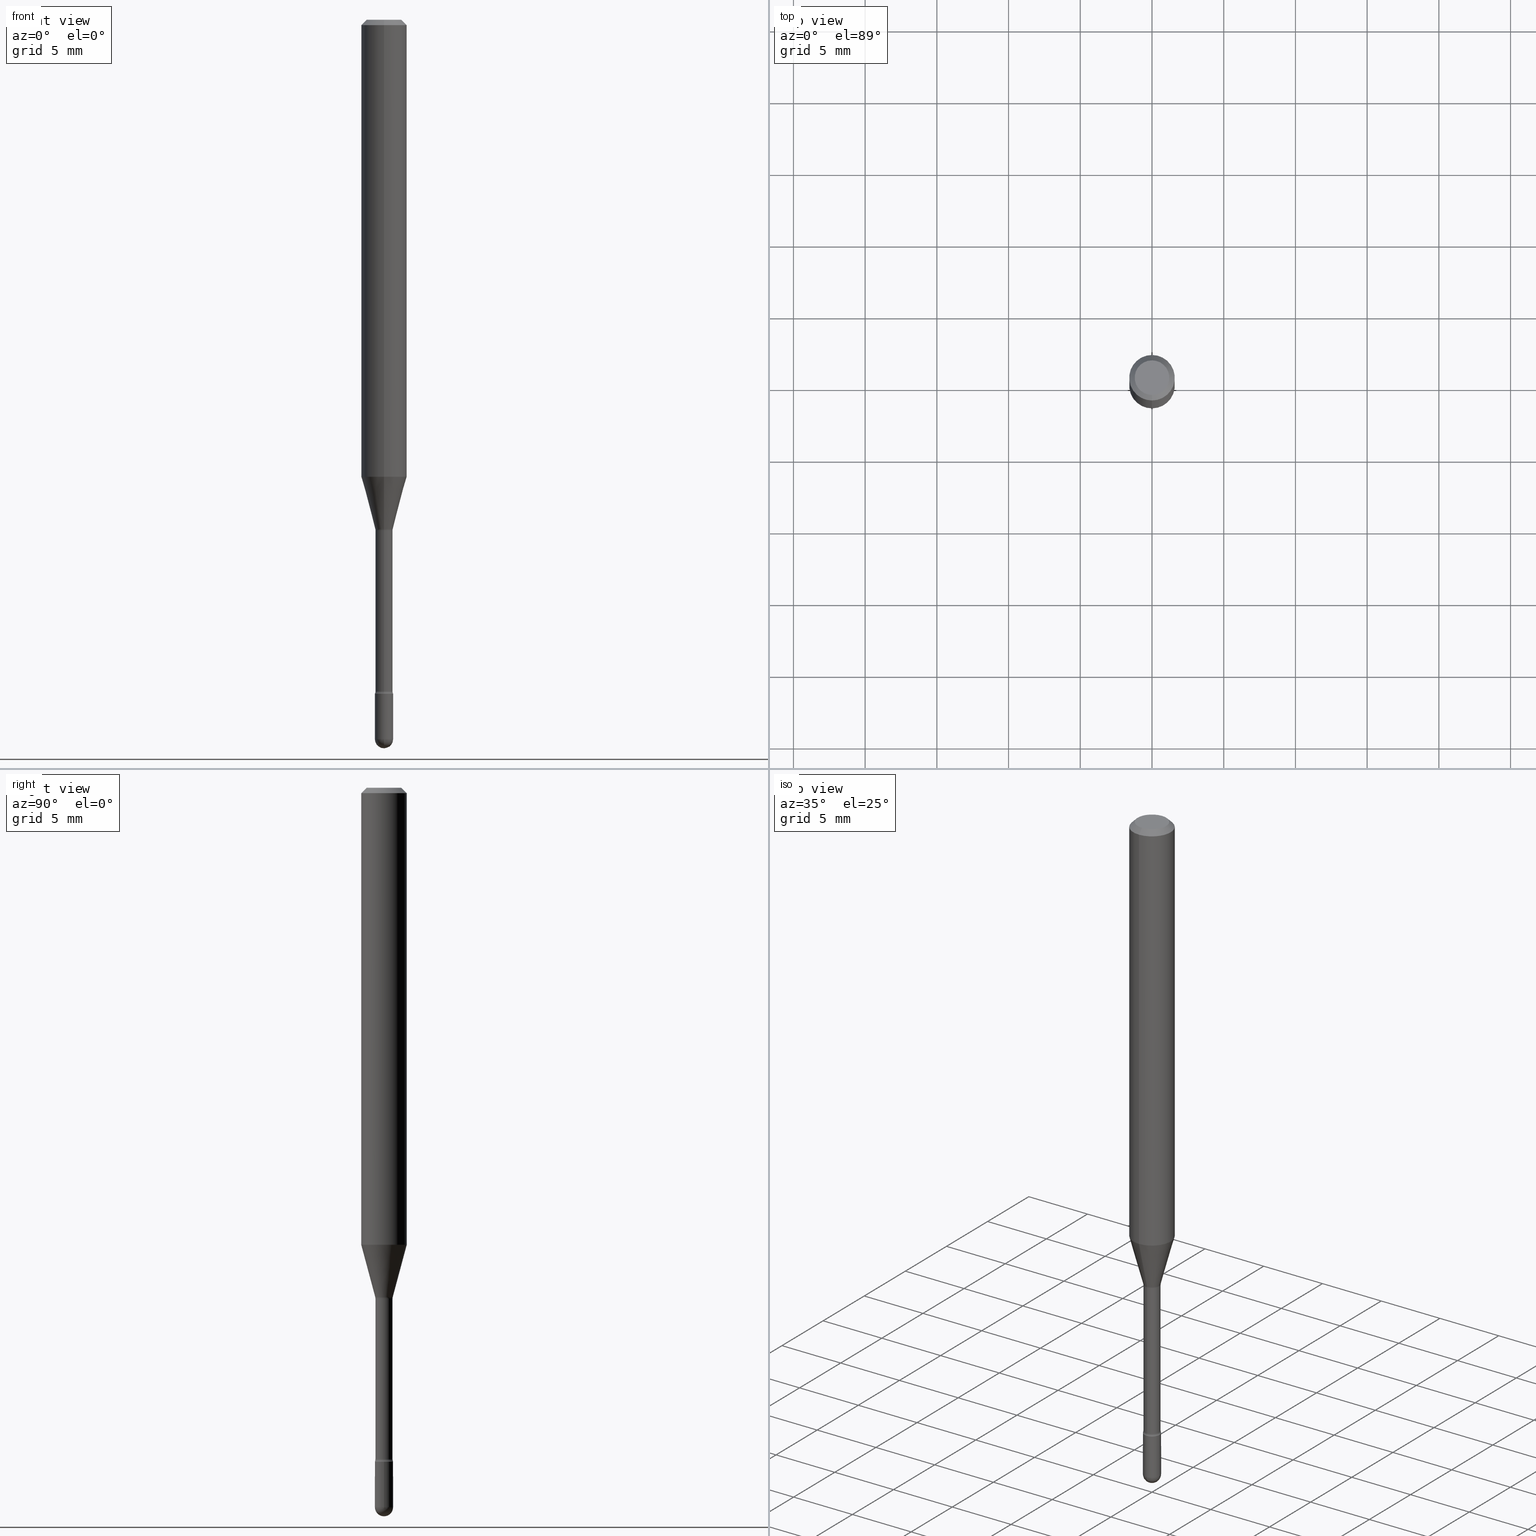
[diagram: canonical four-view strip — front | top / right | iso, engineering-drawing reading convention]
A machine part, canonical four-view strip (front | top / right | iso — engineering-drawing reading convention). The complete STEP part file that produces these views, byte-faithful:
ISO-10303-21;
HEADER;
FILE_DESCRIPTION (( 'STEP AP203' ),
    '1' );
FILE_NAME ('03734.STEP',
    '2024-04-09T20:17:31',
    ( '' ),
    ( '' ),
    'SwSTEP 2.0',
    'SolidWorks 2023',
    '' );
FILE_SCHEMA (( 'CONFIG_CONTROL_DESIGN' ));
ENDSEC;

DATA;
#1 = CARTESIAN_POINT ( 'NONE',  ( 4.508127964348889848E-29, -6.436411955380906656E-15, -1.843461651584689109 ) ) ;
#2 = CARTESIAN_POINT ( 'NONE',  ( 1.745740669422019040E-16, 0.02499999999999354475, -1.849999999999999867 ) ) ;
#3 = ADVANCED_FACE ( 'NONE', ( #37 ), #222, .T. ) ;
#4 = CARTESIAN_POINT ( 'NONE',  ( 0.000000000000000000, 0.000000000000000000, 0.000000000000000000 ) ) ;
#5 = CARTESIAN_POINT ( 'NONE',  ( 4.440892098500934804E-16, 0.06249999999999995143, -0.01500000000000030129 ) ) ;
#6 = ORIENTED_EDGE ( 'NONE', *, *, #508, .F. ) ;
#7 = CARTESIAN_POINT ( 'NONE',  ( 3.840629472727447874E-16, 0.04749999999999999362, -2.485923956665947867E-16 ) ) ;
#8 = DATE_AND_TIME ( #428, #138 ) ;
#9 = CIRCLE ( 'NONE', #531, 0.02350000000000007291 ) ;
#10 = CARTESIAN_POINT ( 'NONE',  ( -1.640996229256275231E-16, -0.02350000000000003475, 5.601221592985818843E-16 ) ) ;
#11 = EDGE_LOOP ( 'NONE', ( #243, #24, #474, #456 ) ) ;
#12 = CARTESIAN_POINT ( 'NONE',  ( -0.02500000000000000486, 1.776356839400250810E-16, -1.229733772563726656E-30 ) ) ;
#13 = ORIENTED_EDGE ( 'NONE', *, *, #75, .T. ) ;
#14 = EDGE_CURVE ( 'NONE', #51, #554, #357, .T. ) ;
#15 = DIRECTION ( 'NONE',  ( 1.000000000000000000, -7.105427357601001070E-15, 4.926314960809432422E-29 ) ) ;
#16 = DIRECTION ( 'NONE',  ( -6.982962677686265922E-15, -1.000000000000000000, 3.491436613078110807E-15 ) ) ;
#17 = DIMENSIONAL_EXPONENTS ( 1.000000000000000000, 0.000000000000000000, 0.000000000000000000, 0.000000000000000000, 0.000000000000000000, 0.000000000000000000, 0.000000000000000000 ) ;
#18 = AXIS2_PLACEMENT_3D ( 'NONE', #437, #142, #491 ) ;
#19 = CARTESIAN_POINT ( 'NONE',  ( -1.169113584055446105E-44, 1.669184350826100908E-30, 4.780733988912460139E-16 ) ) ;
#20 = AXIS2_PLACEMENT_3D ( 'NONE', #65, #163, #175 ) ;
#21 = ADVANCED_FACE ( 'NONE', ( #85 ), #267, .T. ) ;
#22 = DIRECTION ( 'NONE',  ( -2.445500038019932902E-29, 3.491436613078111990E-15, 1.000000000000000000 ) ) ;
#23 = ADVANCED_FACE ( 'NONE', ( #389 ), #566, .T. ) ;
#24 = ORIENTED_EDGE ( 'NONE', *, *, #556, .T. ) ;
#25 = DIRECTION ( 'NONE',  ( -2.445500038019932902E-29, 3.491436613078111990E-15, 1.000000000000000000 ) ) ;
#26 = EDGE_CURVE ( 'NONE', #415, #154, #50, .T. ) ;
#27 =( LENGTH_UNIT ( ) NAMED_UNIT ( * ) SI_UNIT ( $, .METRE. ) );
#28 = AXIS2_PLACEMENT_3D ( 'NONE', #141, #494, #116 ) ;
#29 = CIRCLE ( 'NONE', #90, 0.06250000000000000000 ) ;
#30 = DIRECTION ( 'NONE',  ( -2.445500038019932902E-29, 3.491436613078111990E-15, 1.000000000000000000 ) ) ;
#31 = CC_DESIGN_PERSON_AND_ORGANIZATION_ASSIGNMENT ( #274, #305, ( #227 ) ) ;
#32 = FACE_OUTER_BOUND ( 'NONE', #98, .T. ) ;
#33 = CIRCLE ( 'NONE', #18, 0.01500000000000002720 ) ;
#34 = EDGE_CURVE ( 'NONE', #403, #516, #155, .T. ) ;
#35 = CIRCLE ( 'NONE', #322, 0.02500000000000000139 ) ;
#36 = DIRECTION ( 'NONE',  ( 1.000000000000000000, 0.000000000000000000, 0.000000000000000000 ) ) ;
#37 = FACE_OUTER_BOUND ( 'NONE', #547, .T. ) ;
#38 = ADVANCED_BREP_SHAPE_REPRESENTATION ( '03734', ( #390, #213, #372 ), #511 ) ;
#39 = EDGE_CURVE ( 'NONE', #83, #204, #49, .T. ) ;
#40 = AXIS2_PLACEMENT_3D ( 'NONE', #562, #89, #528 ) ;
#41 = AXIS2_PLACEMENT_3D ( 'NONE', #181, #185, #400 ) ;
#42 = LINE ( 'NONE', #10, #124 ) ;
#43 = ADVANCED_FACE ( 'NONE', ( #402 ), #150, .F. ) ;
#44 = APPROVAL_STATUS ( 'not_yet_approved' ) ;
#45 = DIRECTION ( 'NONE',  ( 1.000000000000000000, -6.982962677686265922E-15, 4.883557194083112340E-29 ) ) ;
#46 = PERSON_AND_ORGANIZATION ( #351, #467 ) ;
#47 = CARTESIAN_POINT ( 'NONE',  ( 3.419035266276159632E-29, -4.881351349210060803E-15, -1.398092501787273179 ) ) ;
#48 = ORIENTED_EDGE ( 'NONE', *, *, #470, .T. ) ;
#49 = LINE ( 'NONE', #239, #465 ) ;
#50 = CIRCLE ( 'NONE', #167, 0.02500000000000000139 ) ;
#51 = VERTEX_POINT ( 'NONE', #7 ) ;
#52 = CARTESIAN_POINT ( 'NONE',  ( -4.364351673553912750E-16, -0.06250000000000005551, -0.01499999999999986587 ) ) ;
#53 = EDGE_LOOP ( 'NONE', ( #502, #501, #211, #536 ) ) ;
#54 = DIRECTION ( 'NONE',  ( 1.000000000000000000, -6.982962677686254878E-15, 0.000000000000000000 ) ) ;
#55 = CARTESIAN_POINT ( 'NONE',  ( 4.364351673553919652E-16, 0.06249999999999995143, -0.01500000000000030129 ) ) ;
#56 = EDGE_LOOP ( 'NONE', ( #281, #377, #214, #233 ) ) ;
#57 = ORIENTED_EDGE ( 'NONE', *, *, #153, .F. ) ;
#58 = DIRECTION ( 'NONE',  ( -6.982962677686263555E-15, -1.000000000000000000, 0.000000000000000000 ) ) ;
#59 = VECTOR ( 'NONE', #559, 39.37007874015748143 ) ;
#60 = DIRECTION ( 'NONE',  ( -1.000000000000000000, 6.982962677686265922E-15, -4.883557194083112901E-29 ) ) ;
#61 = TOROIDAL_SURFACE ( 'NONE', #168, 0.03850000000000000644, 0.01500000000000002373 ) ;
#62 = EDGE_CURVE ( 'NONE', #558, #154, #84, .T. ) ;
#63 = FACE_OUTER_BOUND ( 'NONE', #394, .T. ) ;
#64 = EDGE_CURVE ( 'NONE', #83, #276, #517, .T. ) ;
#65 = CARTESIAN_POINT ( 'NONE',  ( 4.829800892215644891E-29, -6.895675644215213620E-15, -1.975000000000000089 ) ) ;
#66 = ORIENTED_EDGE ( 'NONE', *, *, #255, .F. ) ;
#67 = APPLICATION_CONTEXT ( 'configuration controlled 3d designs of mechanical parts and assemblies' ) ;
#68 = DIRECTION ( 'NONE',  ( -6.982962677686265922E-15, -1.000000000000000000, 3.491436613078112385E-15 ) ) ;
#69 = CIRCLE ( 'NONE', #201, 0.01499999999999998557 ) ;
#70 = CIRCLE ( 'NONE', #338, 0.02401111260566398883 ) ;
#71 = DIRECTION ( 'NONE',  ( 6.982962677686265922E-15, 1.000000000000000000, -3.483106191921935554E-15 ) ) ;
#72 = DIRECTION ( 'NONE',  ( -2.445468806185136597E-29, 3.491481338843145583E-15, 1.000000000000000000 ) ) ;
#73 = ORIENTED_EDGE ( 'NONE', *, *, #255, .T. ) ;
#74 = CIRCLE ( 'NONE', #282, 0.02500000000000000486 ) ;
#75 = EDGE_CURVE ( 'NONE', #248, #405, #33, .T. ) ;
#76 = AXIS2_PLACEMENT_3D ( 'NONE', #289, #408, #457 ) ;
#77 = CYLINDRICAL_SURFACE ( 'NONE', #525, 0.02500000000000000486 ) ;
#78 = APPROVAL_STATUS ( 'not_yet_approved' ) ;
#79 = ORIENTED_EDGE ( 'NONE', *, *, #422, .F. ) ;
#80 = DIRECTION ( 'NONE',  ( 1.839019923739600710E-15, 0.2588190451025250138, 0.9659258262890670910 ) ) ;
#81 = ORIENTED_EDGE ( 'NONE', *, *, #216, .T. ) ;
#82 = DATE_AND_TIME ( #270, #342 ) ;
#83 = VERTEX_POINT ( 'NONE', #312 ) ;
#84 = LINE ( 'NONE', #12, #59 ) ;
#85 = FACE_OUTER_BOUND ( 'NONE', #11, .T. ) ;
#86 = EDGE_CURVE ( 'NONE', #108, #405, #269, .T. ) ;
#87 = AXIS2_PLACEMENT_3D ( 'NONE', #449, #157, #307 ) ;
#88 = LENGTH_MEASURE_WITH_UNIT ( LENGTH_MEASURE( 0.02539999999999999897 ), #27 );
#89 = DIRECTION ( 'NONE',  ( -2.438088387897960049E-29, 3.491481338843145188E-15, 1.000000000000000000 ) ) ;
#90 = AXIS2_PLACEMENT_3D ( 'NONE', #505, #22, #327 ) ;
#91 = FACE_OUTER_BOUND ( 'NONE', #56, .T. ) ;
#92 = ADVANCED_FACE ( 'NONE', ( #302 ), #397, .T. ) ;
#93 = APPROVAL_DATE_TIME ( #482, #104 ) ;
#94 = DIRECTION ( 'NONE',  ( -2.445500038019932902E-29, 3.491436613078111990E-15, 1.000000000000000000 ) ) ;
#95 = EDGE_CURVE ( 'NONE', #248, #276, #523, .T. ) ;
#96 = ORIENTED_EDGE ( 'NONE', *, *, #417, .F. ) ;
#97 = CYLINDRICAL_SURFACE ( 'NONE', #424, 0.06250000000000000000 ) ;
#98 = EDGE_LOOP ( 'NONE', ( #452, #549, #349, #272 ) ) ;
#99 = TOROIDAL_SURFACE ( 'NONE', #443, 0.03850000000000000644, 0.01500000000000002373 ) ;
#100 = VECTOR ( 'NONE', #286, 39.37007874015748143 ) ;
#101 = DIRECTION ( 'NONE',  ( -2.445500038019932902E-29, 3.491436613078111990E-15, 1.000000000000000000 ) ) ;
#102 = CYLINDRICAL_SURFACE ( 'NONE', #563, 0.02350000000000003475 ) ;
#103 = SHAPE_DEFINITION_REPRESENTATION ( #106, #38 ) ;
#104 = APPROVAL ( #126, 'UNSPECIFIED' ) ;
#105 = SPHERICAL_SURFACE ( 'NONE', #20, 0.02499999999999993894 ) ;
#106 = PRODUCT_DEFINITION_SHAPE ( 'NONE', 'NONE',  #453 ) ;
#107 = DIRECTION ( 'NONE',  ( 1.000000000000000000, -6.982962677686253300E-15, 0.000000000000000000 ) ) ;
#108 = VERTEX_POINT ( 'NONE', #435 ) ;
#109 = CONICAL_SURFACE ( 'NONE', #332, 0.02401111260566398883, 0.2617993877991502960 ) ;
#110 = AXIS2_PLACEMENT_3D ( 'NONE', #235, #487, #442 ) ;
#111 = DIRECTION ( 'NONE',  ( -2.445500038019932902E-29, 3.491436613078111990E-15, 1.000000000000000000 ) ) ;
#112 = CIRCLE ( 'NONE', #76, 0.06250000000000000000 ) ;
#113 = CARTESIAN_POINT ( 'NONE',  ( 3.668250057029919339E-31, -5.237154919617196828E-17, -0.01500000000000008271 ) ) ;
#114 = ADVANCED_FACE ( 'NONE', ( #306 ), #99, .F. ) ;
#115 = DIRECTION ( 'NONE',  ( -2.445468806185136597E-29, 3.491481338843145583E-15, 1.000000000000000000 ) ) ;
#116 = DIRECTION ( 'NONE',  ( -6.982962677686265133E-15, -1.000000000000000000, 0.000000000000000000 ) ) ;
#117 = VERTEX_POINT ( 'NONE', #134 ) ;
#118 = AXIS2_PLACEMENT_3D ( 'NONE', #183, #479, #131 ) ;
#119 = CIRCLE ( 'NONE', #28, 0.02500000000000000139 ) ;
#120 = LOCAL_TIME ( 16, 17, 31.00000000000000000, #219 ) ;
#121 = CARTESIAN_POINT ( 'NONE',  ( -0.02500000000000000139, -6.499822376597491792E-15, -1.849999999999999867 ) ) ;
#122 = DATE_AND_TIME ( #383, #432 ) ;
#123 = ORIENTED_EDGE ( 'NONE', *, *, #244, .T. ) ;
#124 = VECTOR ( 'NONE', #101, 39.37007874015748143 ) ;
#125 = LOCAL_TIME ( 16, 17, 31.00000000000000000, #182 ) ;
#126 = APPROVAL_STATUS ( 'not_yet_approved' ) ;
#127 = ORIENTED_EDGE ( 'NONE', *, *, #34, .F. ) ;
#128 = EDGE_CURVE ( 'NONE', #516, #177, #74, .T. ) ;
#129 = CARTESIAN_POINT ( 'NONE',  ( 4.829800892215644891E-29, -6.895675644215213620E-15, -1.975000000000000089 ) ) ;
#130 = DATE_AND_TIME ( #527, #125 ) ;
#131 = DIRECTION ( 'NONE',  ( -6.982962677686266711E-15, -1.000000000000000000, 3.491436613078112385E-15 ) ) ;
#132 = PERSON_AND_ORGANIZATION_ROLE ( 'design_owner' ) ;
#133 = CARTESIAN_POINT ( 'NONE',  ( 3.668250057029919339E-31, -5.237154919617196828E-17, -0.01500000000000008271 ) ) ;
#134 = CARTESIAN_POINT ( 'NONE',  ( -1.676687031750396736E-16, -0.02401111260566887035, -1.398092501787273179 ) ) ;
#135 = ORIENTED_EDGE ( 'NONE', *, *, #374, .T. ) ;
#136 = FACE_OUTER_BOUND ( 'NONE', #53, .T. ) ;
#137 = DIRECTION ( 'NONE',  ( -2.445500038019932341E-29, 3.491436613078111990E-15, 1.000000000000000000 ) ) ;
#138 = LOCAL_TIME ( 16, 17, 31.00000000000000000, #476 ) ;
#139 = ADVANCED_FACE ( 'NONE', ( #166 ), #260, .T. ) ;
#140 = DIRECTION ( 'NONE',  ( -6.982962677686265922E-15, -1.000000000000000000, 3.491436613078111596E-15 ) ) ;
#141 = CARTESIAN_POINT ( 'NONE',  ( 4.524175070336875140E-29, -6.459157734194506196E-15, -1.849999999999999867 ) ) ;
#142 = DIRECTION ( 'NONE',  ( 1.000000000000000000, -7.105427357601001070E-15, 4.926314960809432422E-29 ) ) ;
#143 = EDGE_LOOP ( 'NONE', ( #446, #81 ) ) ;
#144 = CARTESIAN_POINT ( 'NONE',  ( 4.829800892215644891E-29, -6.895675644215213620E-15, -1.975000000000000089 ) ) ;
#145 = DIRECTION ( 'NONE',  ( -2.445500038019932902E-29, 3.491436613078111990E-15, 1.000000000000000000 ) ) ;
#146 = ORIENTED_EDGE ( 'NONE', *, *, #153, .T. ) ;
#147 = CARTESIAN_POINT ( 'NONE',  ( -1.640996229255826813E-16, -0.02350000000000651221, -1.843461651584689109 ) ) ;
#148 = ORIENTED_EDGE ( 'NONE', *, *, #429, .F. ) ;
#149 = EDGE_LOOP ( 'NONE', ( #262, #455, #278, #315 ) ) ;
#150 = PLANE ( 'NONE',  #179 ) ;
#151 = LINE ( 'NONE', #319, #425 ) ;
#152 = ORIENTED_EDGE ( 'NONE', *, *, #128, .T. ) ;
#153 = EDGE_CURVE ( 'NONE', #401, #246, #538, .T. ) ;
#154 = VERTEX_POINT ( 'NONE', #121 ) ;
#155 = CIRCLE ( 'NONE', #110, 0.02500000000000000486 ) ;
#156 = AXIS2_PLACEMENT_3D ( 'NONE', #169, #208, #333 ) ;
#157 = DIRECTION ( 'NONE',  ( -2.445500038019932902E-29, 3.491436613078111990E-15, 1.000000000000000000 ) ) ;
#158 = CARTESIAN_POINT ( 'NONE',  ( -1.776356839399765414E-16, -0.02500000000000686742, -1.975000000000000089 ) ) ;
#159 = EDGE_CURVE ( 'NONE', #558, #403, #300, .T. ) ;
#160 = EDGE_LOOP ( 'NONE', ( #410, #504 ) ) ;
#161 = CARTESIAN_POINT ( 'NONE',  ( 1.745740669422047143E-16, 0.02499999999999307984, -1.975000000000000089 ) ) ;
#162 = EDGE_LOOP ( 'NONE', ( #364, #13, #463, #6 ) ) ;
#163 = DIRECTION ( 'NONE',  ( -1.000000000000000000, 6.982962677686266711E-15, -4.883557194083112901E-29 ) ) ;
#164 = ORIENTED_EDGE ( 'NONE', *, *, #34, .T. ) ;
#165 = EDGE_CURVE ( 'NONE', #250, #204, #209, .T. ) ;
#166 = FACE_OUTER_BOUND ( 'NONE', #292, .T. ) ;
#167 = AXIS2_PLACEMENT_3D ( 'NONE', #447, #277, #54 ) ;
#168 = AXIS2_PLACEMENT_3D ( 'NONE', #464, #111, #68 ) ;
#169 = CARTESIAN_POINT ( 'NONE',  ( 3.316907271900976096E-16, 0.04749999999999999362, 3.181888205172050561E-17 ) ) ;
#170 = PRODUCT ( '03734', '03734', '', ( #221 ) ) ;
#171 = CARTESIAN_POINT ( 'NONE',  ( -2.688440630908765439E-16, -0.03850000000000649431, -1.843461651584689109 ) ) ;
#172 = ORIENTED_EDGE ( 'NONE', *, *, #500, .T. ) ;
#173 = AXIS2_PLACEMENT_3D ( 'NONE', #133, #228, #271 ) ;
#174 = CIRCLE ( 'NONE', #384, 0.02500000000000000486 ) ;
#175 = DIRECTION ( 'NONE',  ( 6.982962677686266711E-15, 1.000000000000000000, 0.000000000000000000 ) ) ;
#176 =( NAMED_UNIT ( * ) SI_UNIT ( $, .STERADIAN. ) SOLID_ANGLE_UNIT ( ) );
#177 = VERTEX_POINT ( 'NONE', #161 ) ;
#178 = ADVANCED_FACE ( 'NONE', ( #326 ), #77, .T. ) ;
#179 = AXIS2_PLACEMENT_3D ( 'NONE', #2, #137, #393 ) ;
#180 = APPROVAL_PERSON_ORGANIZATION ( #186, #104, #530 ) ;
#181 = CARTESIAN_POINT ( 'NONE',  ( 3.067757567947629256E-29, -4.379832723884224406E-15, -1.254450018504814413 ) ) ;
#182 = COORDINATED_UNIVERSAL_TIME_OFFSET ( 5, 0, .BEHIND. ) ;
#183 = CARTESIAN_POINT ( 'NONE',  ( 2.023779965872698057E-45, -2.888920526653800421E-31, -8.274915654538450907E-17 ) ) ;
#184 = DIRECTION ( 'NONE',  ( -6.982962677686265922E-15, -1.000000000000000000, 3.491436613078111596E-15 ) ) ;
#185 = DIRECTION ( 'NONE',  ( -2.445500038019932902E-29, 3.491436613078111990E-15, 1.000000000000000000 ) ) ;
#186 = PERSON_AND_ORGANIZATION ( #351, #467 ) ;
#187 = ADVANCED_FACE ( 'NONE', ( #32 ), #325, .T. ) ;
#188 = DIRECTION ( 'NONE',  ( -2.445500038019932902E-29, 3.491436613078111990E-15, 1.000000000000000000 ) ) ;
#189 = CARTESIAN_POINT ( 'NONE',  ( 4.440892098500930859E-16, 0.06249999999999559380, -1.254450018504814635 ) ) ;
#190 = AXIS2_PLACEMENT_3D ( 'NONE', #503, #436, #450 ) ;
#191 = SECURITY_CLASSIFICATION ( '', '', #522 ) ;
#192 = DATE_TIME_ROLE ( 'classification_date' ) ;
#193 = EDGE_CURVE ( 'NONE', #248, #117, #423, .T. ) ;
#194 = CARTESIAN_POINT ( 'NONE',  ( 4.440892098500625669E-16, 0.06250000000000000000, 2.598586105738640638E-16 ) ) ;
#195 = ORIENTED_EDGE ( 'NONE', *, *, #299, .T. ) ;
#196 = ORIENTED_EDGE ( 'NONE', *, *, #386, .T. ) ;
#197 = CARTESIAN_POINT ( 'NONE',  ( -1.169113584055446105E-44, 1.669184350826100908E-30, 4.780733988912460139E-16 ) ) ;
#198 = EDGE_CURVE ( 'NONE', #489, #324, #119, .T. ) ;
#199 = DIRECTION ( 'NONE',  ( -2.445500038019932902E-29, 3.491436613078111990E-15, 1.000000000000000000 ) ) ;
#200 = EDGE_CURVE ( 'NONE', #405, #108, #254, .T. ) ;
#201 = AXIS2_PLACEMENT_3D ( 'NONE', #355, #15, #484 ) ;
#202 = CC_DESIGN_SECURITY_CLASSIFICATION ( #191, ( #227 ) ) ;
#203 = CARTESIAN_POINT ( 'NONE',  ( 0.02500000000000000486, -1.745740669421567171E-16, 1.219044193948984299E-30 ) ) ;
#204 = VERTEX_POINT ( 'NONE', #52 ) ;
#205 = ORIENTED_EDGE ( 'NONE', *, *, #426, .T. ) ;
#206 = CARTESIAN_POINT ( 'NONE',  ( -1.745740669421113083E-16, -0.02500000000000644762, -1.849999999999999867 ) ) ;
#207 = ORIENTED_EDGE ( 'NONE', *, *, #234, .T. ) ;
#208 = DIRECTION ( 'NONE',  ( 2.445500038019932341E-29, -3.491436613078111990E-15, -1.000000000000000000 ) ) ;
#209 = CIRCLE ( 'NONE', #411, 0.06250000000000000000 ) ;
#210 = CARTESIAN_POINT ( 'NONE',  ( 4.524117291442502256E-29, -6.459240476859818795E-15, -1.849999999999999867 ) ) ;
#211 = ORIENTED_EDGE ( 'NONE', *, *, #39, .T. ) ;
#212 = FACE_OUTER_BOUND ( 'NONE', #406, .T. ) ;
#213 = MANIFOLD_SOLID_BREP ( 'Body-Move/Copy2[2]', #225 ) ;
#214 = ORIENTED_EDGE ( 'NONE', *, *, #475, .F. ) ;
#215 = EDGE_LOOP ( 'NONE', ( #223, #220, #164, #205, #454 ) ) ;
#216 = EDGE_CURVE ( 'NONE', #554, #51, #310, .T. ) ;
#217 = VECTOR ( 'NONE', #94, 39.37007874015748143 ) ;
#218 = DIRECTION ( 'NONE',  ( -1.000000000000000000, 6.982962677686266711E-15, -4.883557194083112901E-29 ) ) ;
#219 = COORDINATED_UNIVERSAL_TIME_OFFSET ( 5, 0, .BEHIND. ) ;
#220 = ORIENTED_EDGE ( 'NONE', *, *, #159, .T. ) ;
#221 = MECHANICAL_CONTEXT ( 'NONE', #373, 'mechanical' ) ;
#222 = PLANE ( 'NONE',  #40 ) ;
#223 = ORIENTED_EDGE ( 'NONE', *, *, #62, .F. ) ;
#224 = CARTESIAN_POINT ( 'NONE',  ( 3.428485609800787057E-29, -4.894968807958481776E-15, -1.401974787463811101 ) ) ;
#225 = CLOSED_SHELL ( 'NONE', ( #114, #448, #241, #21, #334, #370, #139, #336, #92, #534, #43, #328, #23, #515 ) ) ;
#226 = AXIS2_PLACEMENT_3D ( 'NONE', #468, #376, #71 ) ;
#227 = PRODUCT_DEFINITION_FORMATION_WITH_SPECIFIED_SOURCE ( 'ANY', '', #170, .NOT_KNOWN. ) ;
#228 = DIRECTION ( 'NONE',  ( 2.445500038019932902E-29, -3.491436613078111990E-15, -1.000000000000000000 ) ) ;
#229 = CARTESIAN_POINT ( 'NONE',  ( 4.829800892215644891E-29, -6.895675644215213620E-15, -1.975000000000000089 ) ) ;
#230 =( CONVERSION_BASED_UNIT ( 'INCH', #88 ) LENGTH_UNIT ( ) NAMED_UNIT ( #17 ) );
#231 = CARTESIAN_POINT ( 'NONE',  ( -1.169113584055446105E-44, 1.669184350826100908E-30, 4.780733988912460139E-16 ) ) ;
#232 = CARTESIAN_POINT ( 'NONE',  ( 3.073492131224253537E-16, 0.02401111260565910385, -1.398092501787273179 ) ) ;
#233 = ORIENTED_EDGE ( 'NONE', *, *, #39, .F. ) ;
#234 = EDGE_CURVE ( 'NONE', #246, #401, #9, .T. ) ;
#235 = CARTESIAN_POINT ( 'NONE',  ( 4.829800892215644891E-29, -6.895675644215213620E-15, -1.975000000000000089 ) ) ;
#236 = DIRECTION ( 'NONE',  ( -2.445500038019932902E-29, 3.491436613078111990E-15, 1.000000000000000000 ) ) ;
#237 = AXIS2_PLACEMENT_3D ( 'NONE', #231, #188, #535 ) ;
#238 = AXIS2_PLACEMENT_3D ( 'NONE', #171, #60, #365 ) ;
#239 = CARTESIAN_POINT ( 'NONE',  ( -4.364351673553916201E-16, -0.06250000000000000000, 6.962881872086279640E-16 ) ) ;
#240 = DIRECTION ( 'NONE',  ( -2.445500038019932902E-29, 3.491436613078111990E-15, 1.000000000000000000 ) ) ;
#241 = ADVANCED_FACE ( 'NONE', ( #309 ), #431, .F. ) ;
#242 = DIRECTION ( 'NONE',  ( -6.982962677686266711E-15, -1.000000000000000000, 3.491436613078112385E-15 ) ) ;
#243 = ORIENTED_EDGE ( 'NONE', *, *, #216, .F. ) ;
#244 = EDGE_CURVE ( 'NONE', #401, #324, #69, .T. ) ;
#245 = DIRECTION ( 'NONE',  ( -2.445468806185136597E-29, 3.491481338843145583E-15, 1.000000000000000000 ) ) ;
#246 = VERTEX_POINT ( 'NONE', #147 ) ;
#247 = CARTESIAN_POINT ( 'NONE',  ( 0.02500000000000000486, -6.852032127479672876E-15, -1.975000000000000089 ) ) ;
#248 = VERTEX_POINT ( 'NONE', #232 ) ;
#249 = TOROIDAL_SURFACE ( 'NONE', #471, 0.03850000000000005501, 0.01499999999999998036 ) ;
#250 = VERTEX_POINT ( 'NONE', #5 ) ;
#251 = CARTESIAN_POINT ( 'NONE',  ( 0.000000000000000000, 0.000000000000000000, 0.000000000000000000 ) ) ;
#252 = DIRECTION ( 'NONE',  ( -6.982962677686265133E-15, -1.000000000000000000, 0.000000000000000000 ) ) ;
#253 = CARTESIAN_POINT ( 'NONE',  ( -2.688440630908869963E-16, -0.03850000000000489836, -1.401974787463811101 ) ) ;
#254 = CIRCLE ( 'NONE', #560, 0.02350000000000000352 ) ;
#255 = EDGE_CURVE ( 'NONE', #246, #108, #42, .T. ) ;
#256 = AXIS2_PLACEMENT_3D ( 'NONE', #330, #363, #294 ) ;
#257 = CARTESIAN_POINT ( 'NONE',  ( -3.773273898774340269E-16, -0.04749999999999999362, 8.309408257582580554E-17 ) ) ;
#258 = CC_DESIGN_PERSON_AND_ORGANIZATION_ASSIGNMENT ( #340, #434, ( #453 ) ) ;
#259 = ORIENTED_EDGE ( 'NONE', *, *, #382, .T. ) ;
#260 = CONICAL_SURFACE ( 'NONE', #496, 0.02401111260566398883, 0.2617993877991502960 ) ;
#261 = APPLICATION_PROTOCOL_DEFINITION ( 'international standard', 'config_control_design', 1994, #67 ) ;
#262 = ORIENTED_EDGE ( 'NONE', *, *, #556, .F. ) ;
#263 = CARTESIAN_POINT ( 'NONE',  ( 1.706092163947573256E-16, 0.02401111260565910385, -1.398092501787273179 ) ) ;
#264 = COORDINATED_UNIVERSAL_TIME_OFFSET ( 5, 0, .BEHIND. ) ;
#265 = DIRECTION ( 'NONE',  ( -6.982962677686265922E-15, -1.000000000000000000, 0.000000000000000000 ) ) ;
#266 = DIRECTION ( 'NONE',  ( 0.000000000000000000, 0.000000000000000000, 1.000000000000000000 ) ) ;
#267 = CONICAL_SURFACE ( 'NONE', #173, 0.06250000000000000000, 0.7853981633974483900 ) ;
#268 = DIRECTION ( 'NONE',  ( -2.445500038019932902E-29, 3.491436613078111990E-15, 1.000000000000000000 ) ) ;
#269 = CIRCLE ( 'NONE', #337, 0.02350000000000000352 ) ;
#270 = CALENDAR_DATE ( 2024, 9, 4 ) ;
#271 = DIRECTION ( 'NONE',  ( 6.982962677686265922E-15, 1.000000000000000000, -3.483106191921935554E-15 ) ) ;
#272 = ORIENTED_EDGE ( 'NONE', *, *, #299, .F. ) ;
#273 = DIRECTION ( 'NONE',  ( -1.807323732225330534E-15, -0.2588190451025182415, 0.9659258262890689783 ) ) ;
#274 = PERSON_AND_ORGANIZATION ( #351, #467 ) ;
#275 = FACE_OUTER_BOUND ( 'NONE', #288, .T. ) ;
#276 = VERTEX_POINT ( 'NONE', #189 ) ;
#277 = DIRECTION ( 'NONE',  ( -2.445468806185136597E-29, 3.491481338843145583E-15, 1.000000000000000000 ) ) ;
#278 = ORIENTED_EDGE ( 'NONE', *, *, #308, .T. ) ;
#279 = CYLINDRICAL_SURFACE ( 'NONE', #190, 0.06250000000000000000 ) ;
#280 = DIRECTION ( 'NONE',  ( -2.445500038019932902E-29, 3.491436613078111990E-15, 1.000000000000000000 ) ) ;
#281 = ORIENTED_EDGE ( 'NONE', *, *, #64, .T. ) ;
#282 = AXIS2_PLACEMENT_3D ( 'NONE', #144, #313, #107 ) ;
#283 = LINE ( 'NONE', #55, #481 ) ;
#284 = APPROVAL_DATE_TIME ( #130, #343 ) ;
#285 = ORIENTED_EDGE ( 'NONE', *, *, #62, .T. ) ;
#286 = DIRECTION ( 'NONE',  ( -4.851104656540964275E-15, -0.7071067811865500152, -0.7071067811865450192 ) ) ;
#287 = ORIENTED_EDGE ( 'NONE', *, *, #75, .F. ) ;
#288 = EDGE_LOOP ( 'NONE', ( #552, #513, #48, #486 ) ) ;
#289 = CARTESIAN_POINT ( 'NONE',  ( 3.067757567947629256E-29, -4.379832723884224406E-15, -1.254450018504814413 ) ) ;
#290 = EDGE_CURVE ( 'NONE', #276, #250, #407, .T. ) ;
#291 = DIRECTION ( 'NONE',  ( -6.982962677686265922E-15, -1.000000000000000000, 3.483106191921935554E-15 ) ) ;
#292 = EDGE_LOOP ( 'NONE', ( #392, #354, #135, #96 ) ) ;
#293 = CIRCLE ( 'NONE', #256, 0.02499999999999993894 ) ;
#294 = DIRECTION ( 'NONE',  ( -7.105427357601001070E-15, -1.000000000000000000, 0.000000000000000000 ) ) ;
#295 = DIRECTION ( 'NONE',  ( -6.982962677686265133E-15, -1.000000000000000000, 0.000000000000000000 ) ) ;
#296 = PRODUCT_RELATED_PRODUCT_CATEGORY ( 'detail', '', ( #170 ) ) ;
#297 = DIRECTION ( 'NONE',  ( -2.445468806185136877E-29, 3.491481338843145188E-15, 1.000000000000000000 ) ) ;
#298 = CLOSED_SHELL ( 'NONE', ( #485, #187, #3, #461, #178 ) ) ;
#299 = EDGE_CURVE ( 'NONE', #177, #558, #174, .T. ) ;
#300 = CIRCLE ( 'NONE', #419, 0.02500000000000000486 ) ;
#301 = PERSON_AND_ORGANIZATION_ROLE ( 'design_supplier' ) ;
#302 = FACE_OUTER_BOUND ( 'NONE', #149, .T. ) ;
#303 = EDGE_LOOP ( 'NONE', ( #207, #196, #488, #66 ) ) ;
#304 = AXIS2_PLACEMENT_3D ( 'NONE', #210, #115, #542 ) ;
#305 = PERSON_AND_ORGANIZATION_ROLE ( 'creator' ) ;
#306 = FACE_OUTER_BOUND ( 'NONE', #162, .T. ) ;
#307 = DIRECTION ( 'NONE',  ( -6.982962677686265133E-15, -1.000000000000000000, 0.000000000000000000 ) ) ;
#308 = EDGE_CURVE ( 'NONE', #51, #250, #283, .T. ) ;
#309 = FACE_OUTER_BOUND ( 'NONE', #483, .T. ) ;
#310 = CIRCLE ( 'NONE', #321, 0.04749999999999999362 ) ;
#311 = CALENDAR_DATE ( 2024, 9, 4 ) ;
#312 = CARTESIAN_POINT ( 'NONE',  ( -4.364351673553610517E-16, -0.06250000000000439926, -1.254450018504814190 ) ) ;
#313 = DIRECTION ( 'NONE',  ( -2.445468806185136597E-29, 3.491481338843145583E-15, 1.000000000000000000 ) ) ;
#314 = ORIENTED_EDGE ( 'NONE', *, *, #426, .F. ) ;
#315 = ORIENTED_EDGE ( 'NONE', *, *, #165, .T. ) ;
#316 = CARTESIAN_POINT ( 'NONE',  ( 4.892006570231747289E-29, -6.981431869187358080E-15, -2.000000000000000000 ) ) ;
#317 = ORIENTED_EDGE ( 'NONE', *, *, #508, .T. ) ;
#318 = ORIENTED_EDGE ( 'NONE', *, *, #26, .T. ) ;
#319 = CARTESIAN_POINT ( 'NONE',  ( 1.669775429036237659E-16, 0.02350000000000003475, 3.960246384839102914E-16 ) ) ;
#320 = ORIENTED_EDGE ( 'NONE', *, *, #422, .T. ) ;
#321 = AXIS2_PLACEMENT_3D ( 'NONE', #344, #440, #242 ) ;
#322 = AXIS2_PLACEMENT_3D ( 'NONE', #544, #30, #252 ) ;
#323 = CARTESIAN_POINT ( 'NONE',  ( 1.669775429036688050E-16, 0.02349999999999510467, -1.401974787463811101 ) ) ;
#324 = VERTEX_POINT ( 'NONE', #532 ) ;
#325 = SPHERICAL_SURFACE ( 'NONE', #553, 0.02499999999999993894 ) ;
#326 = FACE_OUTER_BOUND ( 'NONE', #215, .T. ) ;
#327 = DIRECTION ( 'NONE',  ( -6.982962677686265922E-15, -1.000000000000000000, 3.483106191921935554E-15 ) ) ;
#328 = ADVANCED_FACE ( 'NONE', ( #275 ), #249, .F. ) ;
#329 = ORIENTED_EDGE ( 'NONE', *, *, #200, .F. ) ;
#330 = CARTESIAN_POINT ( 'NONE',  ( 4.829800892215644891E-29, -6.895675644215213620E-15, -1.975000000000000089 ) ) ;
#331 = CARTESIAN_POINT ( 'NONE',  ( 3.419035266276159632E-29, -4.881351349210060803E-15, -1.398092501787273179 ) ) ;
#332 = AXIS2_PLACEMENT_3D ( 'NONE', #47, #236, #490 ) ;
#333 = DIRECTION ( 'NONE',  ( 6.982962677686265922E-15, 1.000000000000000000, -3.491436613078111990E-15 ) ) ;
#334 = ADVANCED_FACE ( 'NONE', ( #91 ), #279, .T. ) ;
#335 = DIRECTION ( 'NONE',  ( -6.982962677686265133E-15, -1.000000000000000000, 0.000000000000000000 ) ) ;
#336 = ADVANCED_FACE ( 'NONE', ( #136 ), #97, .T. ) ;
#337 = AXIS2_PLACEMENT_3D ( 'NONE', #441, #280, #265 ) ;
#338 = AXIS2_PLACEMENT_3D ( 'NONE', #369, #25, #335 ) ;
#339 = CARTESIAN_POINT ( 'NONE',  ( -4.287811248607203282E-16, -0.06250000000000005551, -0.01499999999999986587 ) ) ;
#340 = PERSON_AND_ORGANIZATION ( #351, #467 ) ;
#341 = AXIS2_PLACEMENT_3D ( 'NONE', #520, #427, #477 ) ;
#342 = LOCAL_TIME ( 16, 17, 31.00000000000000000, #264 ) ;
#343 = APPROVAL ( #78, 'UNSPECIFIED' ) ;
#344 = CARTESIAN_POINT ( 'NONE',  ( 2.023779965872698057E-45, -2.888920526653800421E-31, -8.274915654538450907E-17 ) ) ;
#345 = DESIGN_CONTEXT ( 'detailed design', #67, 'design' ) ;
#346 = APPROVAL_ROLE ( '' ) ;
#347 = DIRECTION ( 'NONE',  ( -2.445500038019932902E-29, 3.491436613078111990E-15, 1.000000000000000000 ) ) ;
#348 = VECTOR ( 'NONE', #273, 39.37007874015748143 ) ;
#349 = ORIENTED_EDGE ( 'NONE', *, *, #159, .F. ) ;
#350 = AXIS2_PLACEMENT_3D ( 'NONE', #251, #514, #413 ) ;
#351 = PERSON ( 'UNSPECIFIED', 'UNSPECIFIED', 'UNSPECIFIED', ('UNSPECIFIED'), ('UNSPECIFIED'), ('UNSPECIFIED') ) ;
#352 = CC_DESIGN_PERSON_AND_ORGANIZATION_ASSIGNMENT ( #438, #395, ( #191 ) ) ;
#353 = DIRECTION ( 'NONE',  ( 4.937700262164548042E-15, 0.7071067811865451302, -0.7071067811865499042 ) ) ;
#354 = ORIENTED_EDGE ( 'NONE', *, *, #193, .T. ) ;
#355 = CARTESIAN_POINT ( 'NONE',  ( 2.735589532676839768E-16, 0.03849999999999361572, -1.843461651584689109 ) ) ;
#356 = CARTESIAN_POINT ( 'NONE',  ( 4.829800892215644891E-29, -6.895675644215213620E-15, -1.975000000000000089 ) ) ;
#357 = CIRCLE ( 'NONE', #118, 0.04749999999999999362 ) ;
#358 = ORIENTED_EDGE ( 'NONE', *, *, #374, .F. ) ;
#359 = VECTOR ( 'NONE', #80, 39.37007874015748143 ) ;
#360 = CIRCLE ( 'NONE', #304, 0.02500000000000000139 ) ;
#361 = LINE ( 'NONE', #203, #540 ) ;
#362 = ORIENTED_EDGE ( 'NONE', *, *, #64, .F. ) ;
#363 = DIRECTION ( 'NONE',  ( -1.000000000000000000, 7.105427357601001070E-15, -4.926315508542082329E-29 ) ) ;
#364 = ORIENTED_EDGE ( 'NONE', *, *, #193, .F. ) ;
#365 = DIRECTION ( 'NONE',  ( -6.982962677686262766E-15, -1.000000000000000000, 0.000000000000000000 ) ) ;
#366 = CARTESIAN_POINT ( 'NONE',  ( 0.02500000000000000139, -6.633814543801975463E-15, -1.849999999999999867 ) ) ;
#367 = CC_DESIGN_PERSON_AND_ORGANIZATION_ASSIGNMENT ( #565, #132, ( #170 ) ) ;
#368 = VERTEX_POINT ( 'NONE', #316 ) ;
#369 = CARTESIAN_POINT ( 'NONE',  ( 3.419035266276159632E-29, -4.881351349210060803E-15, -1.398092501787273179 ) ) ;
#370 = ADVANCED_FACE ( 'NONE', ( #391 ), #109, .T. ) ;
#371 = AXIS2_PLACEMENT_3D ( 'NONE', #433, #347, #140 ) ;
#372 = AXIS2_PLACEMENT_3D ( 'NONE', #4, #266, #36 ) ;
#373 = APPLICATION_CONTEXT ( 'configuration controlled 3d designs of mechanical parts and assemblies' ) ;
#374 = EDGE_CURVE ( 'NONE', #117, #83, #497, .T. ) ;
#375 = ORIENTED_EDGE ( 'NONE', *, *, #86, .T. ) ;
#376 = DIRECTION ( 'NONE',  ( 2.445500038019932902E-29, -3.491436613078111990E-15, -1.000000000000000000 ) ) ;
#377 = ORIENTED_EDGE ( 'NONE', *, *, #290, .T. ) ;
#378 = CARTESIAN_POINT ( 'NONE',  ( 0.000000000000000000, 0.000000000000000000, 0.000000000000000000 ) ) ;
#379 = DIRECTION ( 'NONE',  ( 6.982962677686266711E-15, 1.000000000000000000, 0.000000000000000000 ) ) ;
#380 = PERSON_AND_ORGANIZATION ( #351, #467 ) ;
#381 = ORIENTED_EDGE ( 'NONE', *, *, #95, .T. ) ;
#382 = EDGE_CURVE ( 'NONE', #368, #177, #545, .T. ) ;
#383 = CALENDAR_DATE ( 2024, 9, 4 ) ;
#384 = AXIS2_PLACEMENT_3D ( 'NONE', #229, #245, #387 ) ;
#385 = DIRECTION ( 'NONE',  ( -2.445500038019932902E-29, 3.491436613078111990E-15, 1.000000000000000000 ) ) ;
#386 = EDGE_CURVE ( 'NONE', #401, #405, #151, .T. ) ;
#387 = DIRECTION ( 'NONE',  ( 1.000000000000000000, -6.982962677686253300E-15, 0.000000000000000000 ) ) ;
#388 = COORDINATED_UNIVERSAL_TIME_OFFSET ( 5, 0, .BEHIND. ) ;
#389 = FACE_OUTER_BOUND ( 'NONE', #495, .T. ) ;
#390 = MANIFOLD_SOLID_BREP ( 'Body-Move/Copy2[1]', #298 ) ;
#391 = FACE_OUTER_BOUND ( 'NONE', #439, .T. ) ;
#392 = ORIENTED_EDGE ( 'NONE', *, *, #95, .F. ) ;
#393 = DIRECTION ( 'NONE',  ( -6.982962677686265922E-15, -1.000000000000000000, 3.491436613078111990E-15 ) ) ;
#394 = EDGE_LOOP ( 'NONE', ( #148, #259, #451, #127 ) ) ;
#395 = PERSON_AND_ORGANIZATION_ROLE ( 'classification_officer' ) ;
#396 = CC_DESIGN_DATE_AND_TIME_ASSIGNMENT ( #8, #192, ( #191 ) ) ;
#397 = CONICAL_SURFACE ( 'NONE', #226, 0.06250000000000000000, 0.7853981633974483900 ) ;
#398 = CARTESIAN_POINT ( 'NONE',  ( 4.508185539038644929E-29, -6.436329505148228833E-15, -1.843461651584689109 ) ) ;
#399 = CIRCLE ( 'NONE', #412, 0.01500000000000002720 ) ;
#400 = DIRECTION ( 'NONE',  ( -6.982962677686265922E-15, -1.000000000000000000, 4.370956789862821150E-15 ) ) ;
#401 = VERTEX_POINT ( 'NONE', #539 ) ;
#402 = FACE_OUTER_BOUND ( 'NONE', #160, .T. ) ;
#403 = VERTEX_POINT ( 'NONE', #158 ) ;
#404 = DIRECTION ( 'NONE',  ( -2.445500038019932902E-29, 3.491436613078111990E-15, 1.000000000000000000 ) ) ;
#405 = VERTEX_POINT ( 'NONE', #323 ) ;
#406 = EDGE_LOOP ( 'NONE', ( #195, #285, #493, #314, #152 ) ) ;
#407 = LINE ( 'NONE', #194, #217 ) ;
#408 = DIRECTION ( 'NONE',  ( -2.445500038019932902E-29, 3.491436613078111990E-15, 1.000000000000000000 ) ) ;
#409 = DIRECTION ( 'NONE',  ( -2.445500038019932902E-29, 3.491436613078111990E-15, 1.000000000000000000 ) ) ;
#410 = ORIENTED_EDGE ( 'NONE', *, *, #198, .F. ) ;
#411 = AXIS2_PLACEMENT_3D ( 'NONE', #113, #409, #291 ) ;
#412 = AXIS2_PLACEMENT_3D ( 'NONE', #253, #421, #58 ) ;
#413 = DIRECTION ( 'NONE',  ( 1.000000000000000000, -6.982962677686267499E-15, 4.876176775795936353E-29 ) ) ;
#414 = DIRECTION ( 'NONE',  ( 1.000000000000000000, -6.982962677686253300E-15, 0.000000000000000000 ) ) ;
#415 = VERTEX_POINT ( 'NONE', #366 ) ;
#416 = FACE_OUTER_BOUND ( 'NONE', #143, .T. ) ;
#417 = EDGE_CURVE ( 'NONE', #276, #83, #112, .T. ) ;
#418 = DIRECTION ( 'NONE',  ( -6.982962677686267499E-15, -1.000000000000000000, 3.491436613078113174E-15 ) ) ;
#419 = AXIS2_PLACEMENT_3D ( 'NONE', #469, #72, #414 ) ;
#420 = APPROVAL_PERSON_ORGANIZATION ( #380, #524, #346 ) ;
#421 = DIRECTION ( 'NONE',  ( -1.000000000000000000, 6.982962677686265922E-15, -4.883557194083112901E-29 ) ) ;
#422 = EDGE_CURVE ( 'NONE', #117, #248, #70, .T. ) ;
#423 = CIRCLE ( 'NONE', #87, 0.02401111260566398883 ) ;
#424 = AXIS2_PLACEMENT_3D ( 'NONE', #197, #268, #16 ) ;
#425 = VECTOR ( 'NONE', #199, 39.37007874015748143 ) ;
#426 = EDGE_CURVE ( 'NONE', #516, #415, #361, .T. ) ;
#427 = DIRECTION ( 'NONE',  ( -2.445500038019932902E-29, 3.491436613078111990E-15, 1.000000000000000000 ) ) ;
#428 = CALENDAR_DATE ( 2024, 9, 4 ) ;
#429 = EDGE_CURVE ( 'NONE', #368, #403, #293, .T. ) ;
#430 = APPLICATION_PROTOCOL_DEFINITION ( 'international standard', 'config_control_design', 1994, #373 ) ;
#431 = TOROIDAL_SURFACE ( 'NONE', #371, 0.03850000000000005501, 0.01499999999999998036 ) ;
#432 = LOCAL_TIME ( 16, 17, 31.00000000000000000, #388 ) ;
#433 = CARTESIAN_POINT ( 'NONE',  ( 4.508127964348889848E-29, -6.436411955380906656E-15, -1.843461651584689109 ) ) ;
#434 = PERSON_AND_ORGANIZATION_ROLE ( 'creator' ) ;
#435 = CARTESIAN_POINT ( 'NONE',  ( -1.640996229255930104E-16, -0.02350000000000489891, -1.401974787463811101 ) ) ;
#436 = DIRECTION ( 'NONE',  ( -2.445500038019932902E-29, 3.491436613078111990E-15, 1.000000000000000000 ) ) ;
#437 = CARTESIAN_POINT ( 'NONE',  ( 2.735589532676728342E-16, 0.03849999999999511452, -1.401974787463811101 ) ) ;
#438 = PERSON_AND_ORGANIZATION ( #351, #467 ) ;
#439 = EDGE_LOOP ( 'NONE', ( #320, #381, #362, #358 ) ) ;
#440 = DIRECTION ( 'NONE',  ( -2.445500038019932902E-29, 3.491436613078111990E-15, 1.000000000000000000 ) ) ;
#441 = CARTESIAN_POINT ( 'NONE',  ( 3.428529396045737375E-29, -4.894906103563554113E-15, -1.401974787463811101 ) ) ;
#442 = DIRECTION ( 'NONE',  ( 1.000000000000000000, -6.982962677686253300E-15, 0.000000000000000000 ) ) ;
#443 = AXIS2_PLACEMENT_3D ( 'NONE', #224, #385, #564 ) ;
#444 = DIRECTION ( 'NONE',  ( 6.982962677686265922E-15, 1.000000000000000000, 0.000000000000000000 ) ) ;
#445 = AXIS2_PLACEMENT_3D ( 'NONE', #356, #45, #444 ) ;
#446 = ORIENTED_EDGE ( 'NONE', *, *, #14, .T. ) ;
#447 = CARTESIAN_POINT ( 'NONE',  ( 4.524117291442502256E-29, -6.459240476859818795E-15, -1.849999999999999867 ) ) ;
#448 = ADVANCED_FACE ( 'NONE', ( #460 ), #102, .T. ) ;
#449 = CARTESIAN_POINT ( 'NONE',  ( 3.419035266276159632E-29, -4.881351349210060803E-15, -1.398092501787273179 ) ) ;
#450 = DIRECTION ( 'NONE',  ( -6.982962677686265922E-15, -1.000000000000000000, 3.491436613078110807E-15 ) ) ;
#451 = ORIENTED_EDGE ( 'NONE', *, *, #128, .F. ) ;
#452 = ORIENTED_EDGE ( 'NONE', *, *, #382, .F. ) ;
#453 = PRODUCT_DEFINITION ( 'UNKNOWN', '', #227, #345 ) ;
#454 = ORIENTED_EDGE ( 'NONE', *, *, #500, .F. ) ;
#455 = ORIENTED_EDGE ( 'NONE', *, *, #14, .F. ) ;
#456 = ORIENTED_EDGE ( 'NONE', *, *, #308, .F. ) ;
#457 = DIRECTION ( 'NONE',  ( -6.982962677686265922E-15, -1.000000000000000000, 4.370956789862821150E-15 ) ) ;
#458 = ORIENTED_EDGE ( 'NONE', *, *, #386, .F. ) ;
#459 = APPROVAL_PERSON_ORGANIZATION ( #472, #343, #561 ) ;
#460 = FACE_OUTER_BOUND ( 'NONE', #303, .T. ) ;
#461 = ADVANCED_FACE ( 'NONE', ( #63 ), #105, .T. ) ;
#462 = CARTESIAN_POINT ( 'NONE',  ( -0.02500000000000000486, -6.499822376597491792E-15, -1.975000000000000089 ) ) ;
#463 = ORIENTED_EDGE ( 'NONE', *, *, #200, .T. ) ;
#464 = CARTESIAN_POINT ( 'NONE',  ( 3.428485609800787057E-29, -4.894968807958481776E-15, -1.401974787463811101 ) ) ;
#465 = VECTOR ( 'NONE', #145, 39.37007874015748143 ) ;
#466 = DIRECTION ( 'NONE',  ( 1.000000000000000000, -6.982962677686267499E-15, 4.876176775795936353E-29 ) ) ;
#467 = ORGANIZATION ( 'UNSPECIFIED', 'UNSPECIFIED', '' ) ;
#468 = CARTESIAN_POINT ( 'NONE',  ( 3.668250057029919339E-31, -5.237154919617196828E-17, -0.01500000000000008271 ) ) ;
#469 = CARTESIAN_POINT ( 'NONE',  ( 4.829800892215644891E-29, -6.895675644215213620E-15, -1.975000000000000089 ) ) ;
#470 = EDGE_CURVE ( 'NONE', #246, #489, #546, .T. ) ;
#471 = AXIS2_PLACEMENT_3D ( 'NONE', #1, #529, #184 ) ;
#472 = PERSON_AND_ORGANIZATION ( #351, #467 ) ;
#473 = CC_DESIGN_APPROVAL ( #104, ( #227 ) ) ;
#474 = ORIENTED_EDGE ( 'NONE', *, *, #475, .T. ) ;
#475 = EDGE_CURVE ( 'NONE', #204, #250, #29, .T. ) ;
#476 = COORDINATED_UNIVERSAL_TIME_OFFSET ( 5, 0, .BEHIND. ) ;
#477 = DIRECTION ( 'NONE',  ( -6.982962677686266711E-15, -1.000000000000000000, 0.000000000000000000 ) ) ;
#478 = APPROVAL_DATE_TIME ( #82, #524 ) ;
#479 = DIRECTION ( 'NONE',  ( -2.445500038019932902E-29, 3.491436613078111990E-15, 1.000000000000000000 ) ) ;
#480 = DIRECTION ( 'NONE',  ( -6.982962677686265922E-15, -1.000000000000000000, 0.000000000000000000 ) ) ;
#481 = VECTOR ( 'NONE', #353, 39.37007874015748143 ) ;
#482 = DATE_AND_TIME ( #311, #120 ) ;
#483 = EDGE_LOOP ( 'NONE', ( #57, #123, #492, #506 ) ) ;
#484 = DIRECTION ( 'NONE',  ( 7.105427357600997914E-15, 1.000000000000000000, 0.000000000000000000 ) ) ;
#485 = ADVANCED_FACE ( 'NONE', ( #212 ), #548, .T. ) ;
#486 = ORIENTED_EDGE ( 'NONE', *, *, #198, .T. ) ;
#487 = DIRECTION ( 'NONE',  ( -2.445468806185136597E-29, 3.491481338843145583E-15, 1.000000000000000000 ) ) ;
#488 = ORIENTED_EDGE ( 'NONE', *, *, #86, .F. ) ;
#489 = VERTEX_POINT ( 'NONE', #206 ) ;
#490 = DIRECTION ( 'NONE',  ( -6.982962677686265133E-15, -1.000000000000000000, 0.000000000000000000 ) ) ;
#491 = DIRECTION ( 'NONE',  ( 7.105427357600997914E-15, 1.000000000000000000, 0.000000000000000000 ) ) ;
#492 = ORIENTED_EDGE ( 'NONE', *, *, #519, .T. ) ;
#493 = ORIENTED_EDGE ( 'NONE', *, *, #26, .F. ) ;
#494 = DIRECTION ( 'NONE',  ( -2.445500038019932902E-29, 3.491436613078111990E-15, 1.000000000000000000 ) ) ;
#495 = EDGE_LOOP ( 'NONE', ( #458, #146, #73, #329 ) ) ;
#496 = AXIS2_PLACEMENT_3D ( 'NONE', #331, #509, #295 ) ;
#497 = LINE ( 'NONE', #537, #348 ) ;
#498 = CC_DESIGN_APPROVAL ( #524, ( #453 ) ) ;
#499 = EDGE_LOOP ( 'NONE', ( #287, #79, #317, #375 ) ) ;
#500 = EDGE_CURVE ( 'NONE', #154, #415, #360, .T. ) ;
#501 = ORIENTED_EDGE ( 'NONE', *, *, #417, .T. ) ;
#502 = ORIENTED_EDGE ( 'NONE', *, *, #290, .F. ) ;
#503 = CARTESIAN_POINT ( 'NONE',  ( -1.169113584055446105E-44, 1.669184350826100908E-30, 4.780733988912460139E-16 ) ) ;
#504 = ORIENTED_EDGE ( 'NONE', *, *, #519, .F. ) ;
#505 = CARTESIAN_POINT ( 'NONE',  ( 3.668250057029919339E-31, -5.237154919617196828E-17, -0.01500000000000008271 ) ) ;
#506 = ORIENTED_EDGE ( 'NONE', *, *, #470, .F. ) ;
#507 = FACE_OUTER_BOUND ( 'NONE', #499, .T. ) ;
#508 = EDGE_CURVE ( 'NONE', #117, #108, #399, .T. ) ;
#509 = DIRECTION ( 'NONE',  ( -2.445500038019932902E-29, 3.491436613078111990E-15, 1.000000000000000000 ) ) ;
#510 = CC_DESIGN_APPROVAL ( #343, ( #191 ) ) ;
#511 =( GEOMETRIC_REPRESENTATION_CONTEXT ( 3 ) GLOBAL_UNCERTAINTY_ASSIGNED_CONTEXT ( ( #521 ) ) GLOBAL_UNIT_ASSIGNED_CONTEXT ( ( #230, #557, #176 ) ) REPRESENTATION_CONTEXT ( 'NONE', 'WORKASPACE' ) );
#512 = LINE ( 'NONE', #339, #100 ) ;
#513 = ORIENTED_EDGE ( 'NONE', *, *, #234, .F. ) ;
#514 = DIRECTION ( 'NONE',  ( -2.445468806185136597E-29, 3.491481338843145583E-15, 1.000000000000000000 ) ) ;
#515 = ADVANCED_FACE ( 'NONE', ( #507 ), #61, .F. ) ;
#516 = VERTEX_POINT ( 'NONE', #247 ) ;
#517 = CIRCLE ( 'NONE', #41, 0.06250000000000000000 ) ;
#518 = DIRECTION ( 'NONE',  ( -2.445468806185136597E-29, 3.491481338843145583E-15, 1.000000000000000000 ) ) ;
#519 = EDGE_CURVE ( 'NONE', #324, #489, #35, .T. ) ;
#520 = CARTESIAN_POINT ( 'NONE',  ( 4.508185539038644929E-29, -6.436329505148228833E-15, -1.843461651584689109 ) ) ;
#521 = UNCERTAINTY_MEASURE_WITH_UNIT (LENGTH_MEASURE( 1.000000000000000082E-05 ), #230, 'distance_accuracy_value', 'NONE');
#522 = SECURITY_CLASSIFICATION_LEVEL ( 'unclassified' ) ;
#523 = LINE ( 'NONE', #263, #359 ) ;
#524 = APPROVAL ( #44, 'UNSPECIFIED' ) ;
#525 = AXIS2_PLACEMENT_3D ( 'NONE', #378, #518, #466 ) ;
#526 = DATE_TIME_ROLE ( 'creation_date' ) ;
#527 = CALENDAR_DATE ( 2024, 9, 4 ) ;
#528 = DIRECTION ( 'NONE',  ( 1.000000000000000000, -6.982962677686265922E-15, 4.876176775795935793E-29 ) ) ;
#529 = DIRECTION ( 'NONE',  ( -2.445500038019932902E-29, 3.491436613078111990E-15, 1.000000000000000000 ) ) ;
#530 = APPROVAL_ROLE ( '' ) ;
#531 = AXIS2_PLACEMENT_3D ( 'NONE', #398, #404, #533 ) ;
#532 = CARTESIAN_POINT ( 'NONE',  ( 1.776356839400701940E-16, 0.02499999999999353087, -1.849999999999999867 ) ) ;
#533 = DIRECTION ( 'NONE',  ( -6.982962677686266711E-15, -1.000000000000000000, 0.000000000000000000 ) ) ;
#534 = ADVANCED_FACE ( 'NONE', ( #416 ), #555, .F. ) ;
#535 = DIRECTION ( 'NONE',  ( -6.982962677686267499E-15, -1.000000000000000000, 3.491436613078113174E-15 ) ) ;
#536 = ORIENTED_EDGE ( 'NONE', *, *, #165, .F. ) ;
#537 = CARTESIAN_POINT ( 'NONE',  ( -1.676687031750396736E-16, -0.02401111260566887035, -1.398092501787273179 ) ) ;
#538 = CIRCLE ( 'NONE', #341, 0.02350000000000007291 ) ;
#539 = CARTESIAN_POINT ( 'NONE',  ( 1.723066134218696351E-16, 0.02349999999999363709, -1.843461651584689109 ) ) ;
#540 = VECTOR ( 'NONE', #297, 39.37007874015748143 ) ;
#541 = DIRECTION ( 'NONE',  ( -2.445500038019932902E-29, 3.491436613078111990E-15, 1.000000000000000000 ) ) ;
#542 = DIRECTION ( 'NONE',  ( 1.000000000000000000, -6.982962677686254878E-15, 0.000000000000000000 ) ) ;
#543 = CC_DESIGN_PERSON_AND_ORGANIZATION_ASSIGNMENT ( #46, #301, ( #227 ) ) ;
#544 = CARTESIAN_POINT ( 'NONE',  ( 4.524175070336875140E-29, -6.459157734194506196E-15, -1.849999999999999867 ) ) ;
#545 = CIRCLE ( 'NONE', #445, 0.02499999999999993894 ) ;
#546 = CIRCLE ( 'NONE', #238, 0.01499999999999998557 ) ;
#547 = EDGE_LOOP ( 'NONE', ( #318, #172 ) ) ;
#548 = CYLINDRICAL_SURFACE ( 'NONE', #350, 0.02500000000000000486 ) ;
#549 = ORIENTED_EDGE ( 'NONE', *, *, #429, .T. ) ;
#550 = CC_DESIGN_DATE_AND_TIME_ASSIGNMENT ( #122, #526, ( #453 ) ) ;
#551 = CARTESIAN_POINT ( 'NONE',  ( 3.428529396045737375E-29, -4.894906103563554113E-15, -1.401974787463811101 ) ) ;
#552 = ORIENTED_EDGE ( 'NONE', *, *, #244, .F. ) ;
#553 = AXIS2_PLACEMENT_3D ( 'NONE', #129, #218, #379 ) ;
#554 = VERTEX_POINT ( 'NONE', #257 ) ;
#555 = PLANE ( 'NONE',  #156 ) ;
#556 = EDGE_CURVE ( 'NONE', #554, #204, #512, .T. ) ;
#557 =( NAMED_UNIT ( * ) PLANE_ANGLE_UNIT ( ) SI_UNIT ( $, .RADIAN. ) );
#558 = VERTEX_POINT ( 'NONE', #462 ) ;
#559 = DIRECTION ( 'NONE',  ( -2.445468806185136877E-29, 3.491481338843145188E-15, 1.000000000000000000 ) ) ;
#560 = AXIS2_PLACEMENT_3D ( 'NONE', #551, #240, #480 ) ;
#561 = APPROVAL_ROLE ( '' ) ;
#562 = CARTESIAN_POINT ( 'NONE',  ( 4.524117291442502256E-29, -6.459240476859818795E-15, -1.849999999999999867 ) ) ;
#563 = AXIS2_PLACEMENT_3D ( 'NONE', #19, #541, #418 ) ;
#564 = DIRECTION ( 'NONE',  ( -6.982962677686265922E-15, -1.000000000000000000, 3.491436613078112385E-15 ) ) ;
#565 = PERSON_AND_ORGANIZATION ( #351, #467 ) ;
#566 = CYLINDRICAL_SURFACE ( 'NONE', #237, 0.02350000000000003475 ) ;
ENDSEC;
END-ISO-10303-21;
